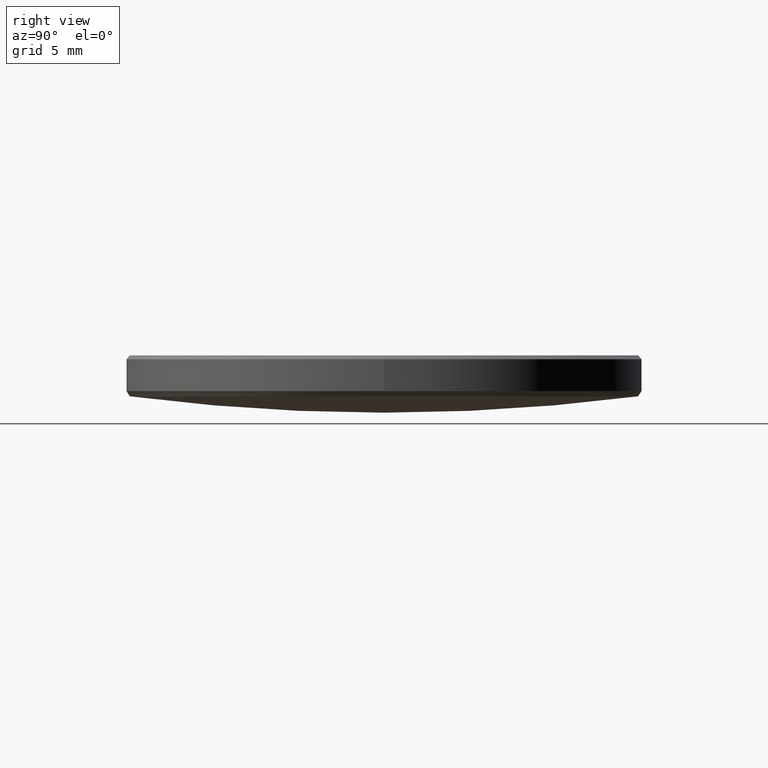
[diagram: clean part render]
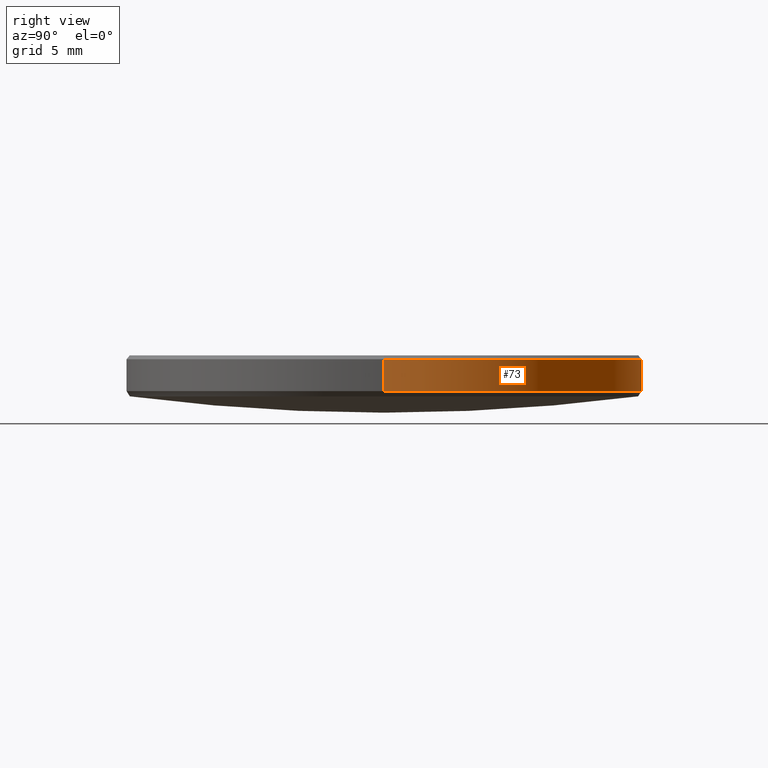
[diagram: same view with one face highlighted and labeled with its STEP entity id]
A machine part, right view. The second image highlights one B-rep face of the part: STEP entity #73.
In plain terms, the highlighted cylindrical surface (partial cylindrical patch) has radius 12.7 mm, axis along (-0, -0, -1).
Its self-contained STEP definition (entity closure, byte-faithful):
#3 = EDGE_LOOP ( 'NONE', ( #150, #212, #7, #127 ) ) ;
#7 = ORIENTED_EDGE ( 'NONE', *, *, #137, .T. ) ;
#15 = DIRECTION ( 'NONE',  ( -0.000000000000000000, -0.000000000000000000, -1.000000000000000000 ) ) ;
#22 = DIRECTION ( 'NONE',  ( 0.000000000000000000, 0.000000000000000000, -1.000000000000000000 ) ) ;
#34 = CARTESIAN_POINT ( 'NONE',  ( 12.69999999999999929, 1.555301434917138433E-15, 5.800000000000138378 ) ) ;
#43 = VERTEX_POINT ( 'NONE', #146 ) ;
#44 = VECTOR ( 'NONE', #81, 1000.000000000000000 ) ;
#53 = CARTESIAN_POINT ( 'NONE',  ( 0.000000000000000000, 0.000000000000000000, 5.800000000000138378 ) ) ;
#66 = AXIS2_PLACEMENT_3D ( 'NONE', #107, #111, #154 ) ;
#73 = ADVANCED_FACE ( 'NONE', ( #254 ), #76, .T. ) ;
#76 = CYLINDRICAL_SURFACE ( 'NONE', #287, 12.69999999999999929 ) ;
#81 = DIRECTION ( 'NONE',  ( -0.000000000000000000, -0.000000000000000000, -1.000000000000000000 ) ) ;
#87 = LINE ( 'NONE', #315, #44 ) ;
#107 = CARTESIAN_POINT ( 'NONE',  ( 0.000000000000000000, 0.000000000000000000, 4.232182868515954155 ) ) ;
#111 = DIRECTION ( 'NONE',  ( -0.000000000000000000, -0.000000000000000000, 1.000000000000000000 ) ) ;
#123 = DIRECTION ( 'NONE',  ( -1.000000000000000000, 0.000000000000000000, 0.000000000000000000 ) ) ;
#127 = ORIENTED_EDGE ( 'NONE', *, *, #172, .F. ) ;
#136 = CARTESIAN_POINT ( 'NONE',  ( 12.69999999999999929, 1.555301434917138433E-15, 4.232182868515954155 ) ) ;
#137 = EDGE_CURVE ( 'NONE', #231, #292, #145, .T. ) ;
#145 = CIRCLE ( 'NONE', #66, 12.69999999999999929 ) ;
#146 = CARTESIAN_POINT ( 'NONE',  ( -12.69999999999999929, 0.000000000000000000, 5.800000000000138378 ) ) ;
#150 = ORIENTED_EDGE ( 'NONE', *, *, #317, .T. ) ;
#154 = DIRECTION ( 'NONE',  ( -1.000000000000000000, 0.000000000000000000, 0.000000000000000000 ) ) ;
#172 = EDGE_CURVE ( 'NONE', #43, #292, #87, .T. ) ;
#177 = CARTESIAN_POINT ( 'NONE',  ( 0.000000000000000000, 0.000000000000000000, 10.00000000000000000 ) ) ;
#186 = VERTEX_POINT ( 'NONE', #34 ) ;
#191 = AXIS2_PLACEMENT_3D ( 'NONE', #53, #22, #251 ) ;
#193 = LINE ( 'NONE', #272, #226 ) ;
#201 = EDGE_CURVE ( 'NONE', #186, #231, #193, .T. ) ;
#212 = ORIENTED_EDGE ( 'NONE', *, *, #201, .T. ) ;
#221 = CARTESIAN_POINT ( 'NONE',  ( -12.69999999999999929, 0.000000000000000000, 4.232182868515954155 ) ) ;
#226 = VECTOR ( 'NONE', #15, 1000.000000000000000 ) ;
#231 = VERTEX_POINT ( 'NONE', #136 ) ;
#251 = DIRECTION ( 'NONE',  ( 1.000000000000000000, 0.000000000000000000, 0.000000000000000000 ) ) ;
#254 = FACE_OUTER_BOUND ( 'NONE', #3, .T. ) ;
#272 = CARTESIAN_POINT ( 'NONE',  ( 12.69999999999999929, 1.555301434917138433E-15, 10.00000000000000000 ) ) ;
#282 = DIRECTION ( 'NONE',  ( -0.000000000000000000, -0.000000000000000000, -1.000000000000000000 ) ) ;
#287 = AXIS2_PLACEMENT_3D ( 'NONE', #177, #282, #123 ) ;
#292 = VERTEX_POINT ( 'NONE', #221 ) ;
#295 = CIRCLE ( 'NONE', #191, 12.69999999999999929 ) ;
#315 = CARTESIAN_POINT ( 'NONE',  ( -12.69999999999999929, 0.000000000000000000, 10.00000000000000000 ) ) ;
#317 = EDGE_CURVE ( 'NONE', #43, #186, #295, .T. ) ;